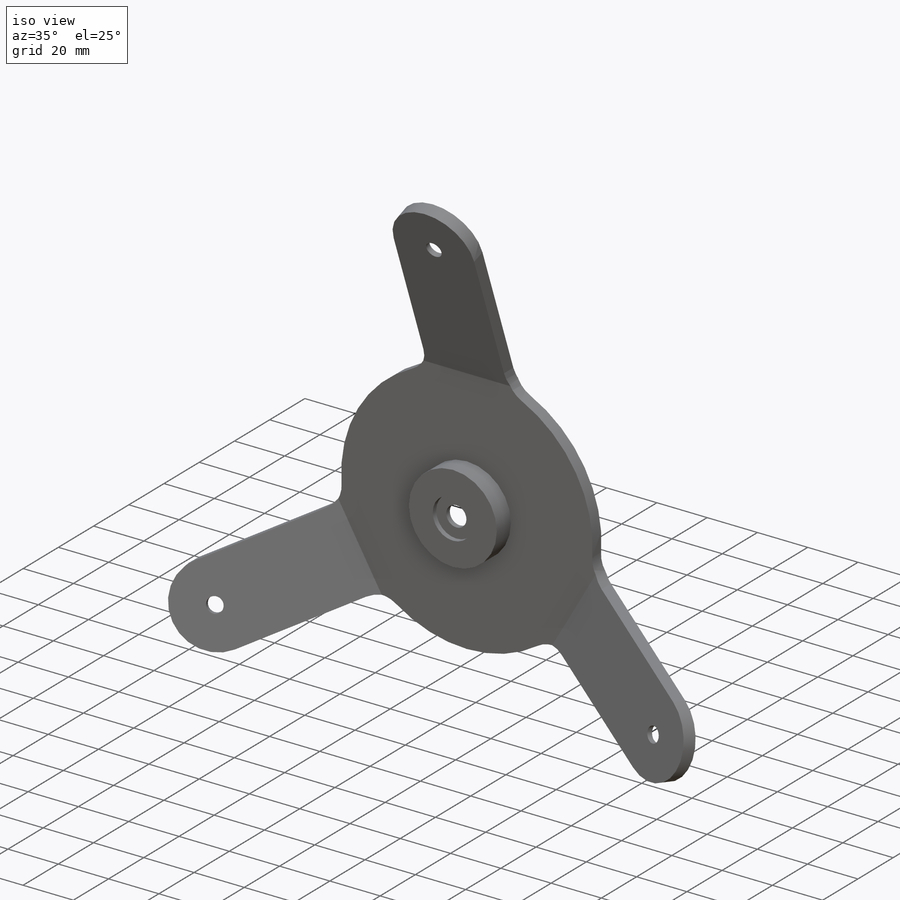
[diagram: iso view]
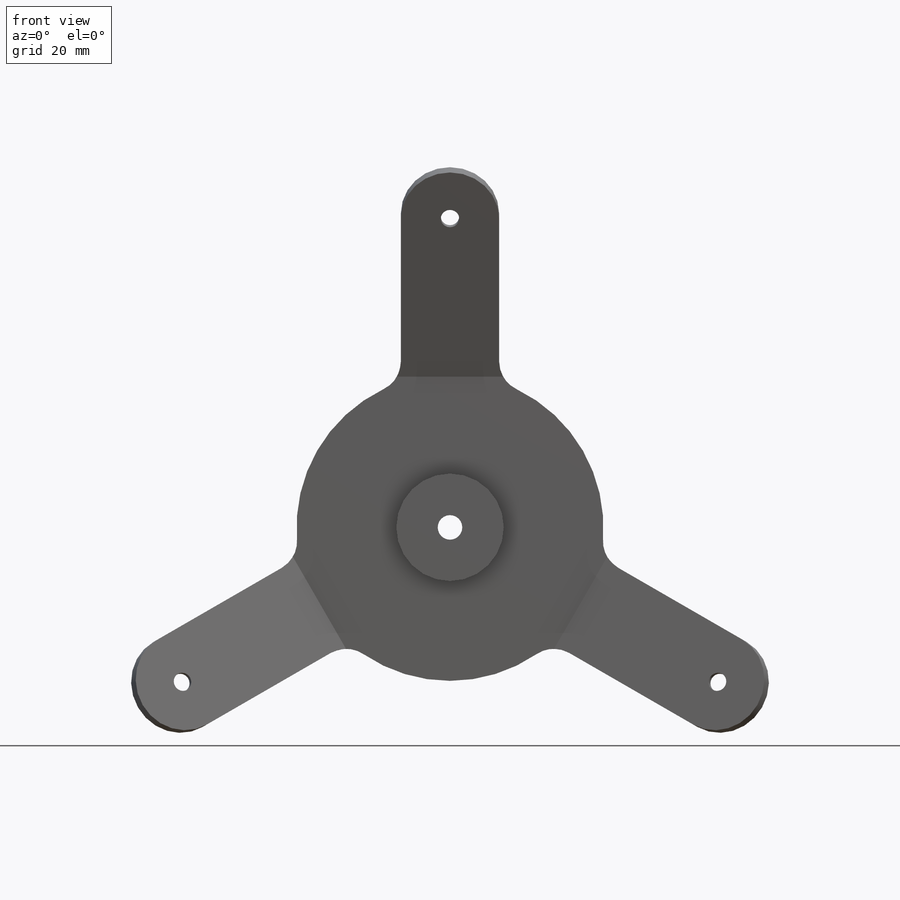
[diagram: front view]
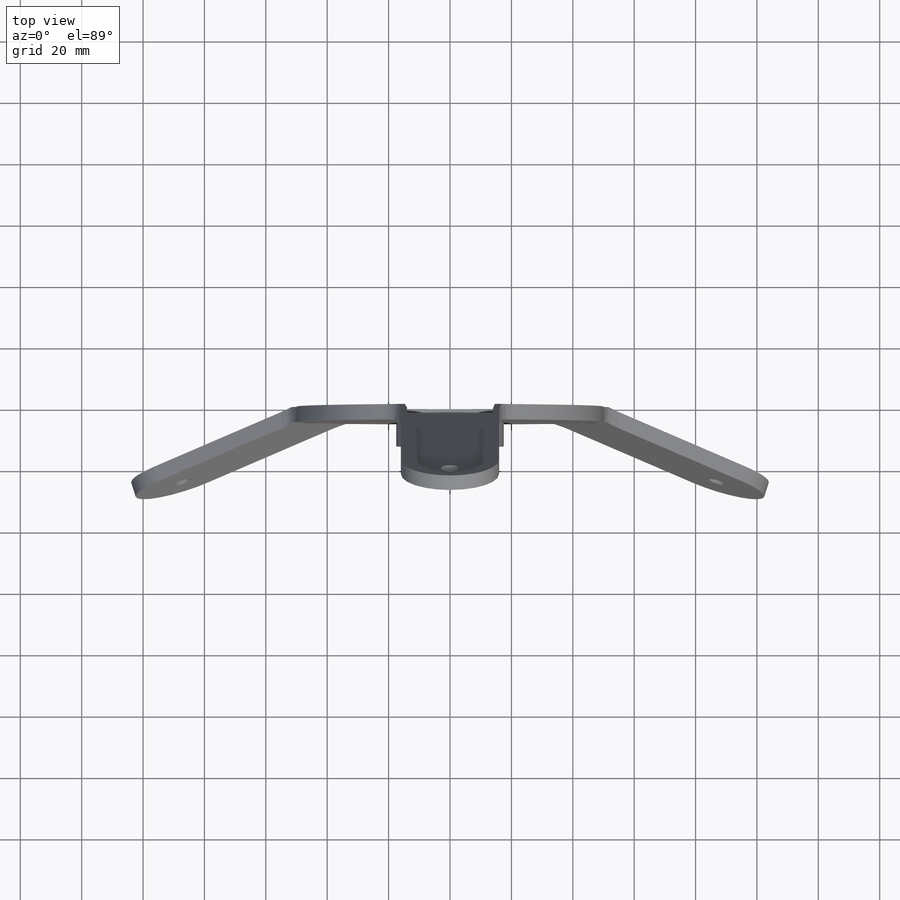
[diagram: top view]
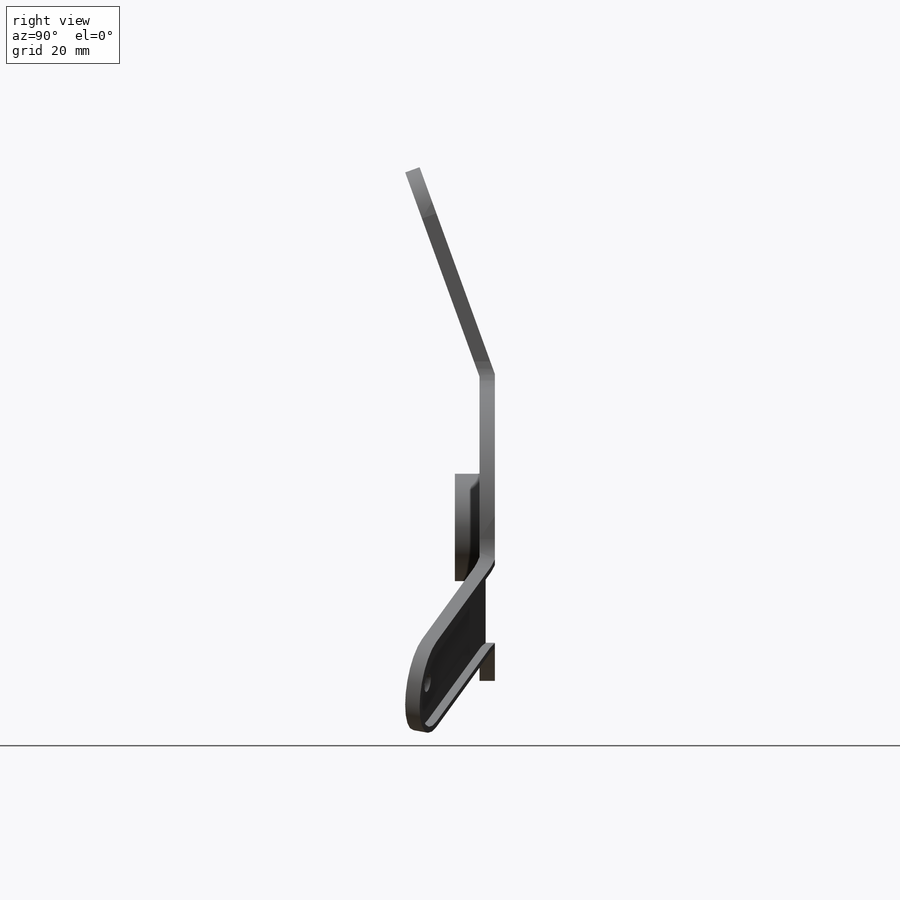
[diagram: right view]
SOLIDWORKS PART (.sldprt)
format: sldprt  version: not decoded by parser v0  size: 300,032 bytes
history: native  units: mm
features: sketch x9, plane x5, extrude x4, cut_extrude x4, shell x2, material x1, fillet x1, pattern_circular x1 (+10 scaffold rows collapsed)
feature tree (37):
  scaffold x10  (default folders/planes/origin — collapsed)
  material  "材质 <未指定>"
  plane  "前视基准面"
  plane  "上视基准面"
  plane  "右视基准面"
  sketch  "草图1"  dims[c1.D1=~72.496045mm c2.D1=3.0]
  extrude  "凸台-拉伸1"  Depth=5mm
  extrude  "凸台-拉伸2"  [1 undecoded]
  sketch  "草图1<3>"  dims[D1=13.0mm]
  sketch  "草图2"  dims[D1=10.0mm]
  cut_extrude  "切除-拉伸1"  Depth=2mm
  plane  "基准面1"
  sketch  "草图3"  dims[D3=~6.200177mm D1=16.0mm D2=16.0mm]
  extrude  "凸台-拉伸3"  Depth=5mm
  sketch  "草图4"
  plane  "基准面2"
  sketch  "草图5"
  extrude  "凸台-拉伸5"  [1 undecoded]
  sketch  "草图3<3>"
  cut_extrude  "切除-拉伸2"  [1 undecoded]
  fillet  "圆角5"  Radius=10mm
  pattern_circular  "阵列(圆周)5"  Count=3 Angle=120deg
  shell  "抽壳1"  Thickness=2mm
  sketch  "草图6"  dims[D1=~5.520357mm]
  cut_extrude  "切除-拉伸3"  [1 undecoded]
  shell  "阵列(圆周)6"  Thickness=3
  sketch  "草图7"  dims[D1=~2.967088mm]
  cut_extrude  "切除-拉伸4"  [1 undecoded]
decode coverage: 13 of 21 modeling features carry decoded parameters
note: ~ marks probable driven/reference dimensions
note: 5 parameter values undecoded
summary: no parameter record found for 5 features
note: suppression state not decoded; provenance and decode notes live in map.json
